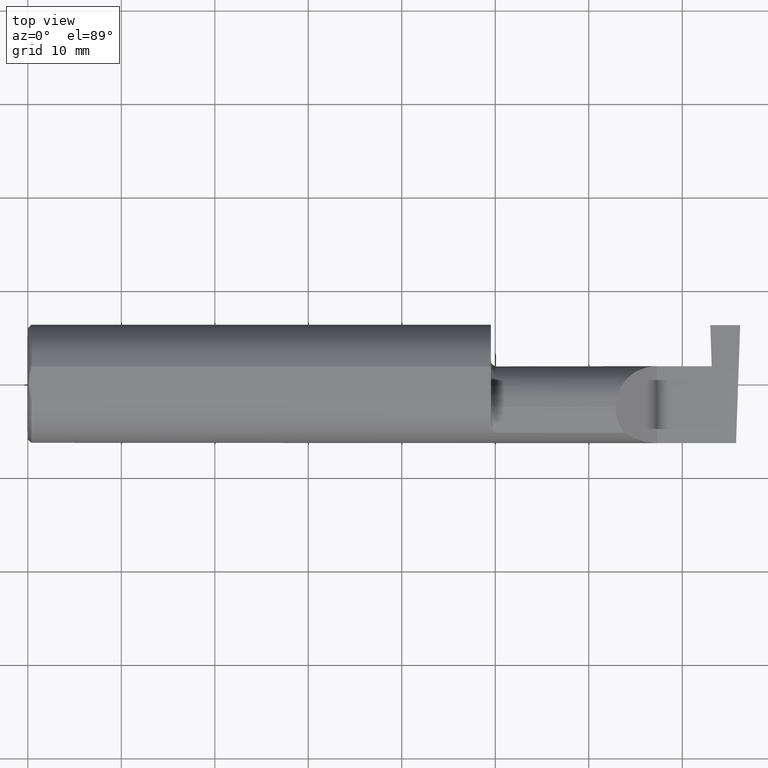
[diagram: clean part render]
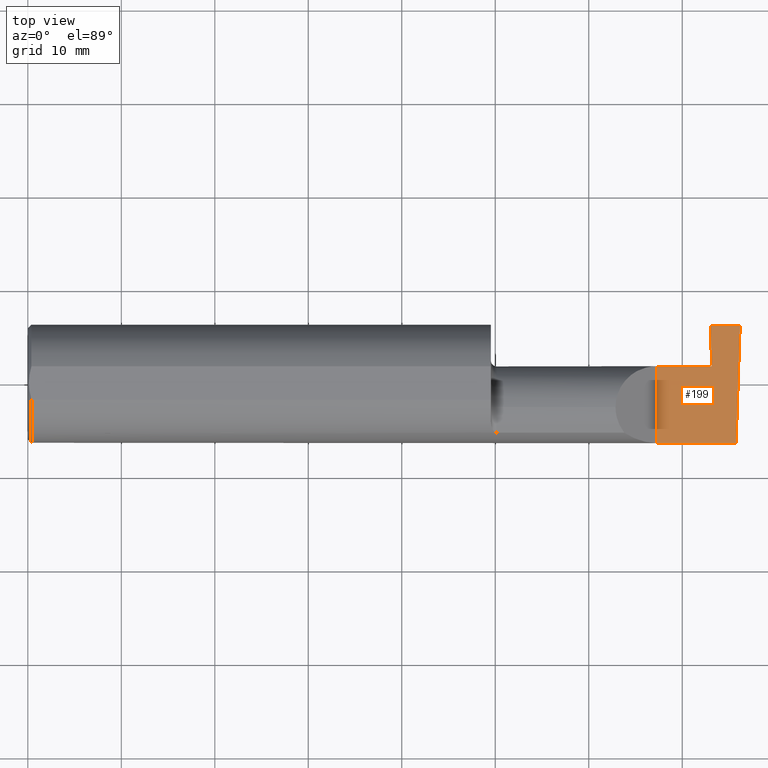
[diagram: same view with one face highlighted and labeled with its STEP entity id]
A machine part, top view. The second image highlights one B-rep face of the part: STEP entity #199.
In plain terms, the highlighted planar face has unit normal (-0, 0, -1).
Its self-contained STEP definition (entity closure, byte-faithful):
#3 = ORIENTED_EDGE ( 'NONE', *, *, #271, .F. ) ;
#5 = CARTESIAN_POINT ( 'NONE',  ( 2.874000000000000110, 0.07414999999999997982, 1.285877240036560800E-16 ) ) ;
#14 = ORIENTED_EDGE ( 'NONE', *, *, #69, .T. ) ;
#30 = CARTESIAN_POINT ( 'NONE',  ( 2.880037608447156394, 0.07414999999999993818, 7.345577941662580874E-18 ) ) ;
#69 = EDGE_CURVE ( 'NONE', #771, #325, #485, .T. ) ;
#71 = CARTESIAN_POINT ( 'NONE',  ( 3.000000000000000444, 0.07414999999999991043, 7.431225809576783727E-33 ) ) ;
#105 = CARTESIAN_POINT ( 'NONE',  ( 2.982644377562602589, -0.2498499999999999610, 1.813681607540488003E-17 ) ) ;
#132 = LINE ( 'NONE', #71, #587 ) ;
#136 = DIRECTION ( 'NONE',  ( 0.03489949670249940794, 0.9993908270190957621, -4.452728370532699971E-18 ) ) ;
#146 = DIRECTION ( 'NONE',  ( -1.000000000000000000, -0.000000000000000000, -0.000000000000000000 ) ) ;
#151 = LINE ( 'NONE', #208, #511 ) ;
#173 = DIRECTION ( 'NONE',  ( 0.03487823687994805882, -0.9993915692020550745, -4.023838201466321508E-18 ) ) ;
#183 = LINE ( 'NONE', #323, #647 ) ;
#187 = PLANE ( 'NONE',  #691 ) ;
#189 = DIRECTION ( 'NONE',  ( 1.000000000000000000, 0.000000000000000000, 0.000000000000000000 ) ) ;
#199 = ADVANCED_FACE ( 'NONE', ( #518 ), #187, .F. ) ;
#208 = CARTESIAN_POINT ( 'NONE',  ( 2.650000000000000355, -0.2500000000000000555, 4.286263797015727350E-17 ) ) ;
#216 = EDGE_CURVE ( 'NONE', #325, #639, #132, .T. ) ;
#221 = ORIENTED_EDGE ( 'NONE', *, *, #591, .F. ) ;
#259 = EDGE_CURVE ( 'NONE', #445, #263, #324, .T. ) ;
#261 = LINE ( 'NONE', #572, #716 ) ;
#263 = VERTEX_POINT ( 'NONE', #376 ) ;
#271 = EDGE_CURVE ( 'NONE', #771, #263, #261, .T. ) ;
#276 = VECTOR ( 'NONE', #136, 39.37007874015748143 ) ;
#288 = ORIENTED_EDGE ( 'NONE', *, *, #342, .F. ) ;
#323 = CARTESIAN_POINT ( 'NONE',  ( 1.950000000000000178, 0.07414999999999997982, 1.285879139104718760E-16 ) ) ;
#324 = LINE ( 'NONE', #455, #276 ) ;
#325 = VERTEX_POINT ( 'NONE', #30 ) ;
#328 = EDGE_LOOP ( 'NONE', ( #702, #781, #3, #14, #367, #221, #288 ) ) ;
#342 = EDGE_CURVE ( 'NONE', #590, #408, #151, .T. ) ;
#352 = LINE ( 'NONE', #695, #471 ) ;
#367 = ORIENTED_EDGE ( 'NONE', *, *, #216, .T. ) ;
#369 = CARTESIAN_POINT ( 'NONE',  ( 2.891482443365339439, -0.2537872052982785287, 1.328956783839287718E-17 ) ) ;
#376 = CARTESIAN_POINT ( 'NONE',  ( 3.000000000000000444, 0.2471499999999999531, -7.549931466865102584E-16 ) ) ;
#383 = CARTESIAN_POINT ( 'NONE',  ( 2.650000000000000355, -0.2498499999999999610, 4.286263797015727350E-17 ) ) ;
#387 = DIRECTION ( 'NONE',  ( -1.000000000000000000, 0.000000000000000000, 1.224646799147351482E-16 ) ) ;
#408 = VERTEX_POINT ( 'NONE', #589 ) ;
#445 = VERTEX_POINT ( 'NONE', #105 ) ;
#455 = CARTESIAN_POINT ( 'NONE',  ( 2.982660284539054629, -0.2493944837933358694, 2.123502703737254632E-18 ) ) ;
#471 = VECTOR ( 'NONE', #146, 39.37007874015748143 ) ;
#485 = LINE ( 'NONE', #369, #792 ) ;
#509 = DIRECTION ( 'NONE',  ( 1.000000000000000000, -0.000000000000000000, -0.000000000000000000 ) ) ;
#511 = VECTOR ( 'NONE', #540, 39.37007874015748143 ) ;
#514 = DIRECTION ( 'NONE',  ( -1.000000000000000000, -1.871990241922592797E-16, 1.224646799147351482E-16 ) ) ;
#518 = FACE_OUTER_BOUND ( 'NONE', #328, .T. ) ;
#540 = DIRECTION ( 'NONE',  ( -0.000000000000000000, 1.000000000000000000, -0.000000000000000000 ) ) ;
#568 = DIRECTION ( 'NONE',  ( -1.224646799147351482E-16, 0.000000000000000000, -1.000000000000000000 ) ) ;
#572 = CARTESIAN_POINT ( 'NONE',  ( 2.825000000000000178, 0.2471500000000000086, -3.306546357697639493E-19 ) ) ;
#587 = VECTOR ( 'NONE', #514, 39.37007874015748143 ) ;
#589 = CARTESIAN_POINT ( 'NONE',  ( 2.650000000000000355, 0.07414999999999997982, 4.286263797015727350E-17 ) ) ;
#590 = VERTEX_POINT ( 'NONE', #383 ) ;
#591 = EDGE_CURVE ( 'NONE', #408, #639, #183, .T. ) ;
#637 = CARTESIAN_POINT ( 'NONE',  ( 2.874000000000000110, 0.2471500000000000086, -3.306546357697639493E-19 ) ) ;
#639 = VERTEX_POINT ( 'NONE', #5 ) ;
#647 = VECTOR ( 'NONE', #189, 39.37007874015748143 ) ;
#691 = AXIS2_PLACEMENT_3D ( 'NONE', #747, #568, #387 ) ;
#695 = CARTESIAN_POINT ( 'NONE',  ( 4.499279347985559139E-32, -0.2498499999999999610, 3.673940397442053459E-16 ) ) ;
#697 = EDGE_CURVE ( 'NONE', #445, #590, #352, .T. ) ;
#702 = ORIENTED_EDGE ( 'NONE', *, *, #697, .F. ) ;
#716 = VECTOR ( 'NONE', #509, 39.37007874015748143 ) ;
#747 = CARTESIAN_POINT ( 'NONE',  ( 3.000000000000000444, -0.2500000000000000555, 0.000000000000000000 ) ) ;
#771 = VERTEX_POINT ( 'NONE', #637 ) ;
#781 = ORIENTED_EDGE ( 'NONE', *, *, #259, .T. ) ;
#792 = VECTOR ( 'NONE', #173, 39.37007874015748854 ) ;